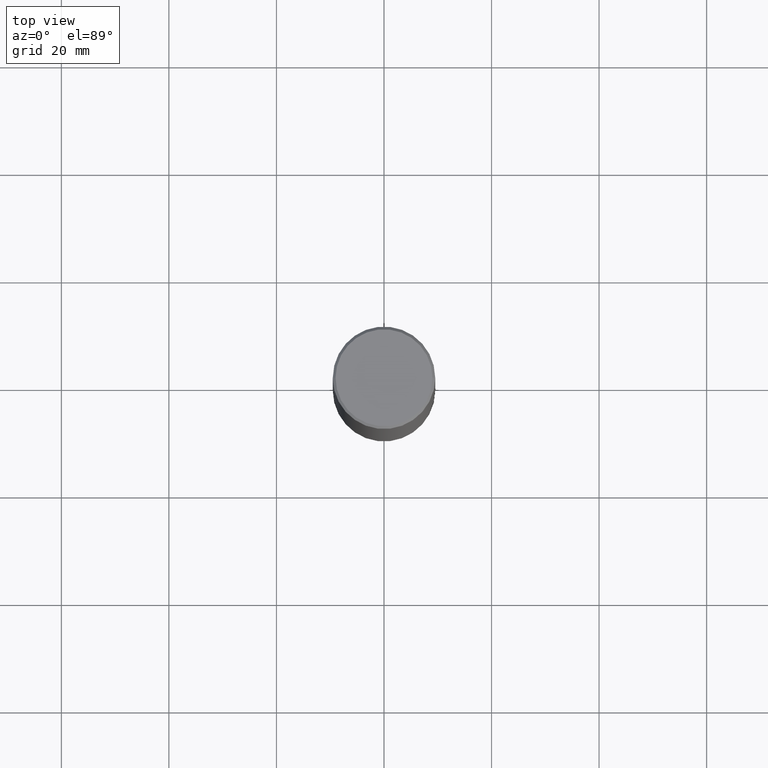
[diagram: clean part render]
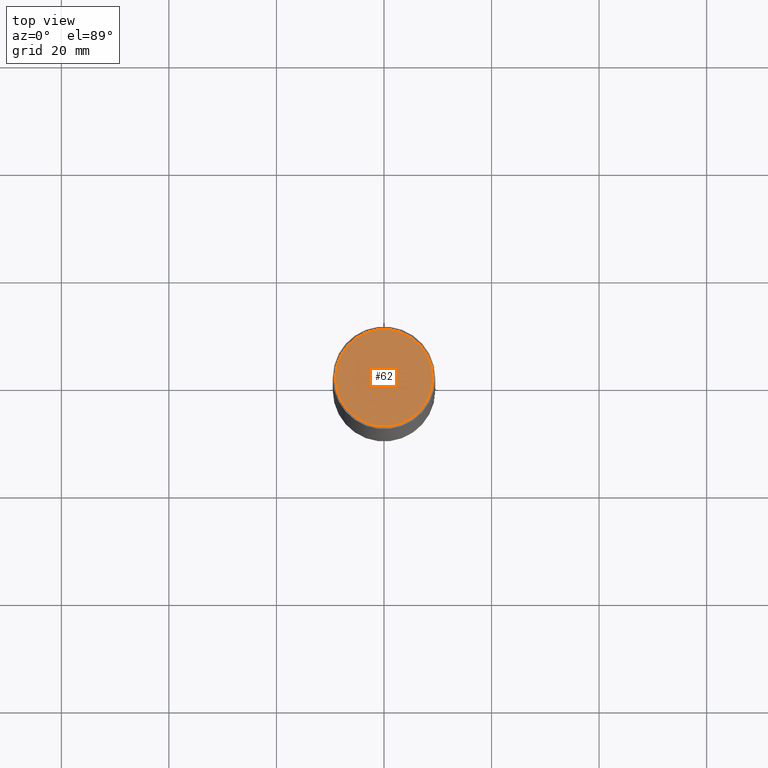
[diagram: same view with one face highlighted and labeled with its STEP entity id]
A machine part, top view. The second image highlights one B-rep face of the part: STEP entity #62.
In plain terms, the highlighted planar face has unit normal (0, -0, -1).
Its self-contained STEP definition (entity closure, byte-faithful):
#29 = EDGE_CURVE ( 'NONE', #100, #237, #292, .T. ) ;
#53 = FACE_OUTER_BOUND ( 'NONE', #171, .T. ) ;
#57 = PLANE ( 'NONE',  #67 ) ;
#62 = ADVANCED_FACE ( 'NONE', ( #53 ), #57, .F. ) ;
#67 = AXIS2_PLACEMENT_3D ( 'NONE', #328, #234, #153 ) ;
#99 = ORIENTED_EDGE ( 'NONE', *, *, #29, .T. ) ;
#100 = VERTEX_POINT ( 'NONE', #106 ) ;
#106 = CARTESIAN_POINT ( 'NONE',  ( 0.3549999999999996492, -2.538996582575038287E-15, 8.537024980218368550E-18 ) ) ;
#125 = CARTESIAN_POINT ( 'NONE',  ( -2.087702828670439639E-46, 2.980686340760894400E-32, 8.537024980200822558E-18 ) ) ;
#140 = CARTESIAN_POINT ( 'NONE',  ( -0.3549999999999996492, 2.513866563967053097E-15, 8.537024980183364388E-18 ) ) ;
#153 = DIRECTION ( 'NONE',  ( -1.000000000000000000, 6.982962677686265922E-15, -4.876176775795935793E-29 ) ) ;
#171 = EDGE_LOOP ( 'NONE', ( #340, #99 ) ) ;
#174 = DIRECTION ( 'NONE',  ( -2.445468806185136597E-29, 3.491481338843145583E-15, 1.000000000000000000 ) ) ;
#191 = EDGE_CURVE ( 'NONE', #237, #100, #261, .T. ) ;
#203 = DIRECTION ( 'NONE',  ( 1.000000000000000000, -6.982962677686265922E-15, 4.876231632511992667E-29 ) ) ;
#212 = AXIS2_PLACEMENT_3D ( 'NONE', #125, #232, #203 ) ;
#232 = DIRECTION ( 'NONE',  ( -2.445468806185136597E-29, 3.491481338843145583E-15, 1.000000000000000000 ) ) ;
#233 = AXIS2_PLACEMENT_3D ( 'NONE', #322, #174, #239 ) ;
#234 = DIRECTION ( 'NONE',  ( 2.438088387897960049E-29, -3.491481338843145188E-15, -1.000000000000000000 ) ) ;
#237 = VERTEX_POINT ( 'NONE', #140 ) ;
#239 = DIRECTION ( 'NONE',  ( 1.000000000000000000, -6.982962677686265922E-15, 4.876231632511992667E-29 ) ) ;
#261 = CIRCLE ( 'NONE', #233, 0.3549999999999996492 ) ;
#292 = CIRCLE ( 'NONE', #212, 0.3549999999999996492 ) ;
#322 = CARTESIAN_POINT ( 'NONE',  ( -2.087702828670439639E-46, 2.980686340760894400E-32, 8.537024980200822558E-18 ) ) ;
#328 = CARTESIAN_POINT ( 'NONE',  ( 2.478951750578621842E-15, 0.3549999999999996492, -1.235207362799214833E-15 ) ) ;
#340 = ORIENTED_EDGE ( 'NONE', *, *, #191, .T. ) ;